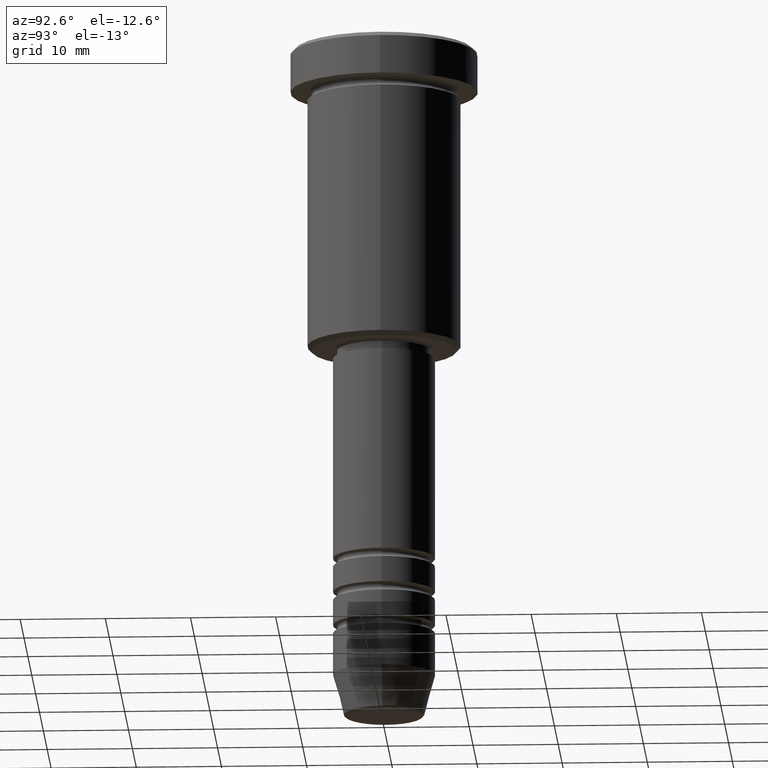
[diagram: clean part render]
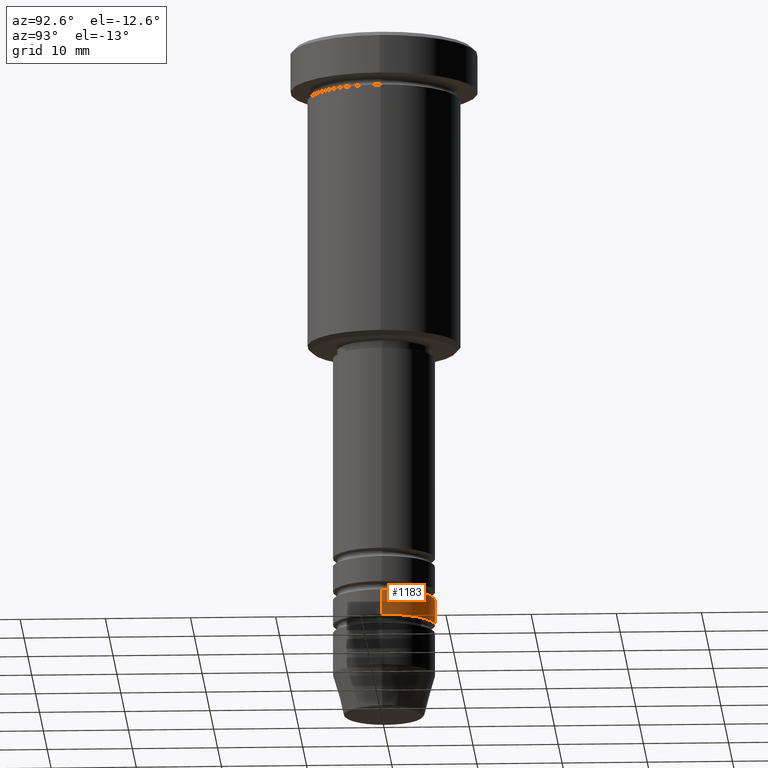
[diagram: same view with one face highlighted and labeled with its STEP entity id]
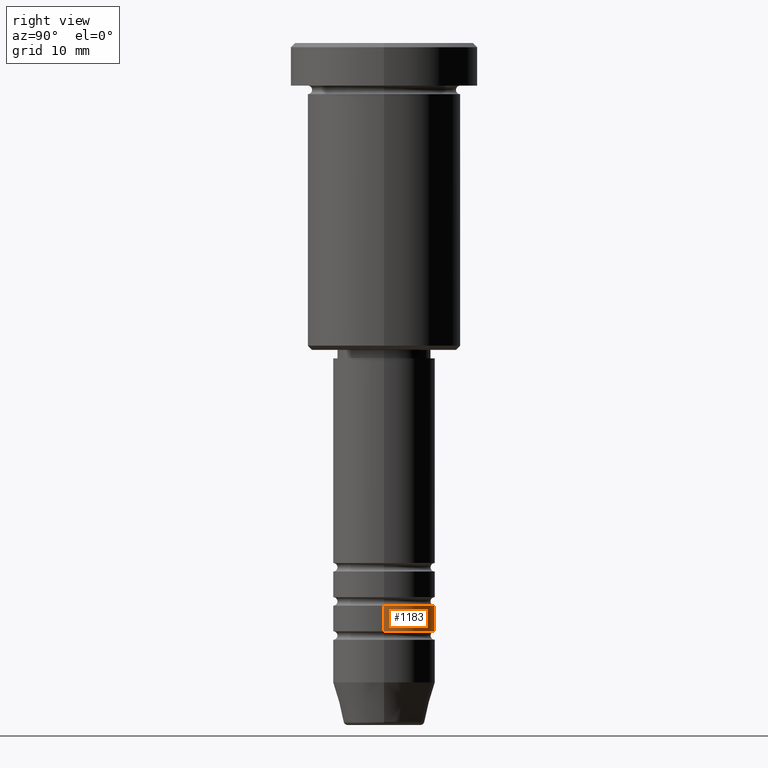
[diagram: same view with one face highlighted and labeled with its STEP entity id]
A machine part, auxiliary view. The second image highlights one B-rep face of the part: STEP entity #1183.
A second angle (right view) of the same face is appended — the face is thin or edge-on in the first view.
In plain terms, the highlighted cylindrical surface (partial cylindrical patch) has radius 6 mm, axis along (-0, -0, 1).
Its self-contained STEP definition (entity closure, byte-faithful):
#14 = CARTESIAN_POINT ( 'NONE',  ( 0.000000000000000000, 0.000000000000000000, 0.000000000000000000 ) ) ;
#62 = EDGE_CURVE ( 'NONE', #194, #621, #1063, .T. ) ;
#83 = CIRCLE ( 'NONE', #207, 6.000000000000000000 ) ;
#136 = DIRECTION ( 'NONE',  ( -0.000000000000000000, -0.000000000000000000, 1.000000000000000000 ) ) ;
#163 = DIRECTION ( 'NONE',  ( -0.000000000000000000, -0.000000000000000000, 1.000000000000000000 ) ) ;
#164 = ORIENTED_EDGE ( 'NONE', *, *, #516, .T. ) ;
#182 = CARTESIAN_POINT ( 'NONE',  ( 6.000000000000000000, 0.000000000000000000, 0.000000000000000000 ) ) ;
#190 = CARTESIAN_POINT ( 'NONE',  ( -5.999999999999999112, 7.347880794884118750E-16, -66.00000000000000000 ) ) ;
#194 = VERTEX_POINT ( 'NONE', #441 ) ;
#202 = ORIENTED_EDGE ( 'NONE', *, *, #62, .F. ) ;
#207 = AXIS2_PLACEMENT_3D ( 'NONE', #814, #376, #728 ) ;
#216 = EDGE_CURVE ( 'NONE', #838, #529, #83, .T. ) ;
#299 = VECTOR ( 'NONE', #163, 1000.000000000000000 ) ;
#332 = CARTESIAN_POINT ( 'NONE',  ( -6.000000000000000000, 7.347880794884119736E-16, 0.000000000000000000 ) ) ;
#350 = EDGE_LOOP ( 'NONE', ( #514, #164, #202, #1151 ) ) ;
#376 = DIRECTION ( 'NONE',  ( -0.000000000000000000, -0.000000000000000000, 1.000000000000000000 ) ) ;
#403 = CARTESIAN_POINT ( 'NONE',  ( 6.000000000000000000, 0.000000000000000000, -69.00000000000000000 ) ) ;
#410 = CARTESIAN_POINT ( 'NONE',  ( 0.000000000000000000, 0.000000000000000000, -66.00000000000000000 ) ) ;
#441 = CARTESIAN_POINT ( 'NONE',  ( 5.999999999999999112, 0.000000000000000000, -66.00000000000000000 ) ) ;
#479 = LINE ( 'NONE', #182, #660 ) ;
#514 = ORIENTED_EDGE ( 'NONE', *, *, #216, .T. ) ;
#516 = EDGE_CURVE ( 'NONE', #529, #621, #533, .T. ) ;
#529 = VERTEX_POINT ( 'NONE', #1055 ) ;
#533 = LINE ( 'NONE', #332, #299 ) ;
#621 = VERTEX_POINT ( 'NONE', #190 ) ;
#660 = VECTOR ( 'NONE', #1182, 1000.000000000000000 ) ;
#728 = DIRECTION ( 'NONE',  ( 1.000000000000000000, 0.000000000000000000, 0.000000000000000000 ) ) ;
#732 = DIRECTION ( 'NONE',  ( -0.000000000000000000, -0.000000000000000000, 1.000000000000000000 ) ) ;
#814 = CARTESIAN_POINT ( 'NONE',  ( 0.000000000000000000, 0.000000000000000000, -69.00000000000000000 ) ) ;
#825 = DIRECTION ( 'NONE',  ( 1.000000000000000000, 0.000000000000000000, 0.000000000000000000 ) ) ;
#833 = FACE_OUTER_BOUND ( 'NONE', #350, .T. ) ;
#837 = CYLINDRICAL_SURFACE ( 'NONE', #949, 6.000000000000000000 ) ;
#838 = VERTEX_POINT ( 'NONE', #403 ) ;
#854 = DIRECTION ( 'NONE',  ( 1.000000000000000000, 0.000000000000000000, 0.000000000000000000 ) ) ;
#949 = AXIS2_PLACEMENT_3D ( 'NONE', #14, #732, #825 ) ;
#1055 = CARTESIAN_POINT ( 'NONE',  ( -6.000000000000000000, 7.347880794884119736E-16, -69.00000000000000000 ) ) ;
#1063 = CIRCLE ( 'NONE', #1111, 5.999999999999999112 ) ;
#1111 = AXIS2_PLACEMENT_3D ( 'NONE', #410, #136, #854 ) ;
#1151 = ORIENTED_EDGE ( 'NONE', *, *, #1173, .F. ) ;
#1173 = EDGE_CURVE ( 'NONE', #838, #194, #479, .T. ) ;
#1182 = DIRECTION ( 'NONE',  ( -0.000000000000000000, -0.000000000000000000, 1.000000000000000000 ) ) ;
#1183 = ADVANCED_FACE ( 'NONE', ( #833 ), #837, .T. ) ;